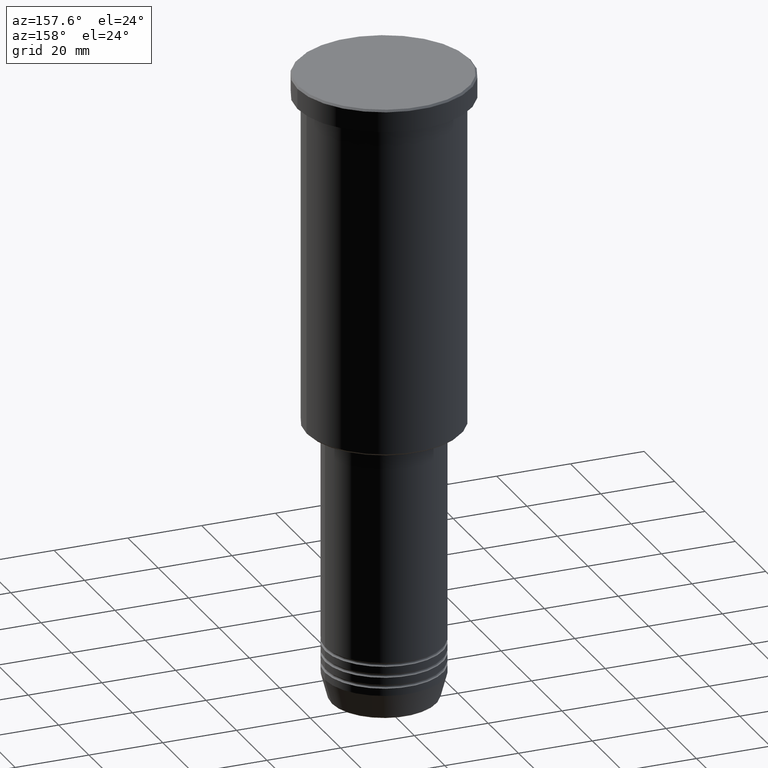
[diagram: clean part render]
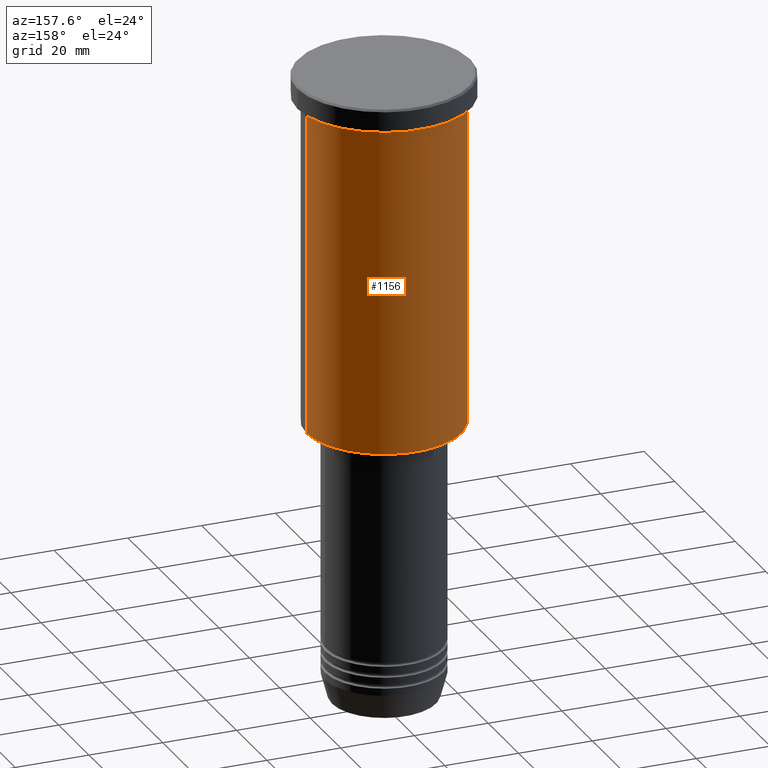
[diagram: same view with one face highlighted and labeled with its STEP entity id]
A machine part, auxiliary view. The second image highlights one B-rep face of the part: STEP entity #1156.
In plain terms, the highlighted cylindrical surface (partial cylindrical patch) has radius 21 mm, axis along (-0, -0, 1).
Its self-contained STEP definition (entity closure, byte-faithful):
#7 = CARTESIAN_POINT ( 'NONE',  ( 0.000000000000000000, 0.000000000000000000, -95.49999999999997158 ) ) ;
#68 = ORIENTED_EDGE ( 'NONE', *, *, #957, .F. ) ;
#117 = CYLINDRICAL_SURFACE ( 'NONE', #189, 21.00000000000000000 ) ;
#189 = AXIS2_PLACEMENT_3D ( 'NONE', #937, #217, #849 ) ;
#211 = LINE ( 'NONE', #387, #889 ) ;
#217 = DIRECTION ( 'NONE',  ( -0.000000000000000000, -0.000000000000000000, 1.000000000000000000 ) ) ;
#255 = CARTESIAN_POINT ( 'NONE',  ( 21.00000000000000000, 0.000000000000000000, -95.49999999999997158 ) ) ;
#264 = DIRECTION ( 'NONE',  ( 1.000000000000000000, 0.000000000000000000, 0.000000000000000000 ) ) ;
#272 = LINE ( 'NONE', #378, #455 ) ;
#363 = VERTEX_POINT ( 'NONE', #255 ) ;
#378 = CARTESIAN_POINT ( 'NONE',  ( 21.00000000000000000, 0.000000000000000000, 0.000000000000000000 ) ) ;
#387 = CARTESIAN_POINT ( 'NONE',  ( -21.00000000000000000, 2.571758278209441661E-15, 0.000000000000000000 ) ) ;
#412 = AXIS2_PLACEMENT_3D ( 'NONE', #7, #732, #650 ) ;
#434 = CIRCLE ( 'NONE', #574, 21.00000000000000000 ) ;
#455 = VECTOR ( 'NONE', #729, 1000.000000000000000 ) ;
#490 = EDGE_CURVE ( 'NONE', #611, #702, #211, .T. ) ;
#574 = AXIS2_PLACEMENT_3D ( 'NONE', #705, #1072, #264 ) ;
#611 = VERTEX_POINT ( 'NONE', #1109 ) ;
#615 = EDGE_LOOP ( 'NONE', ( #992, #779, #68, #946 ) ) ;
#619 = CIRCLE ( 'NONE', #412, 21.00000000000000000 ) ;
#650 = DIRECTION ( 'NONE',  ( -1.000000000000000000, 0.000000000000000000, 0.000000000000000000 ) ) ;
#652 = DIRECTION ( 'NONE',  ( -0.000000000000000000, -0.000000000000000000, 1.000000000000000000 ) ) ;
#702 = VERTEX_POINT ( 'NONE', #838 ) ;
#705 = CARTESIAN_POINT ( 'NONE',  ( 0.000000000000000000, 0.000000000000000000, -6.999999999999994671 ) ) ;
#729 = DIRECTION ( 'NONE',  ( -0.000000000000000000, -0.000000000000000000, 1.000000000000000000 ) ) ;
#732 = DIRECTION ( 'NONE',  ( -0.000000000000000000, -0.000000000000000000, 1.000000000000000000 ) ) ;
#767 = CARTESIAN_POINT ( 'NONE',  ( 21.00000000000000000, 0.000000000000000000, -6.999999999999994671 ) ) ;
#779 = ORIENTED_EDGE ( 'NONE', *, *, #490, .T. ) ;
#838 = CARTESIAN_POINT ( 'NONE',  ( -21.00000000000000000, 2.571758278209441661E-15, -6.999999999999994671 ) ) ;
#849 = DIRECTION ( 'NONE',  ( 1.000000000000000000, 0.000000000000000000, 0.000000000000000000 ) ) ;
#889 = VECTOR ( 'NONE', #652, 1000.000000000000000 ) ;
#929 = FACE_OUTER_BOUND ( 'NONE', #615, .T. ) ;
#937 = CARTESIAN_POINT ( 'NONE',  ( 0.000000000000000000, 0.000000000000000000, 0.000000000000000000 ) ) ;
#946 = ORIENTED_EDGE ( 'NONE', *, *, #1094, .F. ) ;
#957 = EDGE_CURVE ( 'NONE', #1039, #702, #434, .T. ) ;
#992 = ORIENTED_EDGE ( 'NONE', *, *, #1022, .T. ) ;
#1022 = EDGE_CURVE ( 'NONE', #363, #611, #619, .T. ) ;
#1039 = VERTEX_POINT ( 'NONE', #767 ) ;
#1072 = DIRECTION ( 'NONE',  ( -0.000000000000000000, -0.000000000000000000, 1.000000000000000000 ) ) ;
#1094 = EDGE_CURVE ( 'NONE', #363, #1039, #272, .T. ) ;
#1109 = CARTESIAN_POINT ( 'NONE',  ( -21.00000000000000000, 2.571758278209441661E-15, -95.49999999999997158 ) ) ;
#1156 = ADVANCED_FACE ( 'NONE', ( #929 ), #117, .T. ) ;